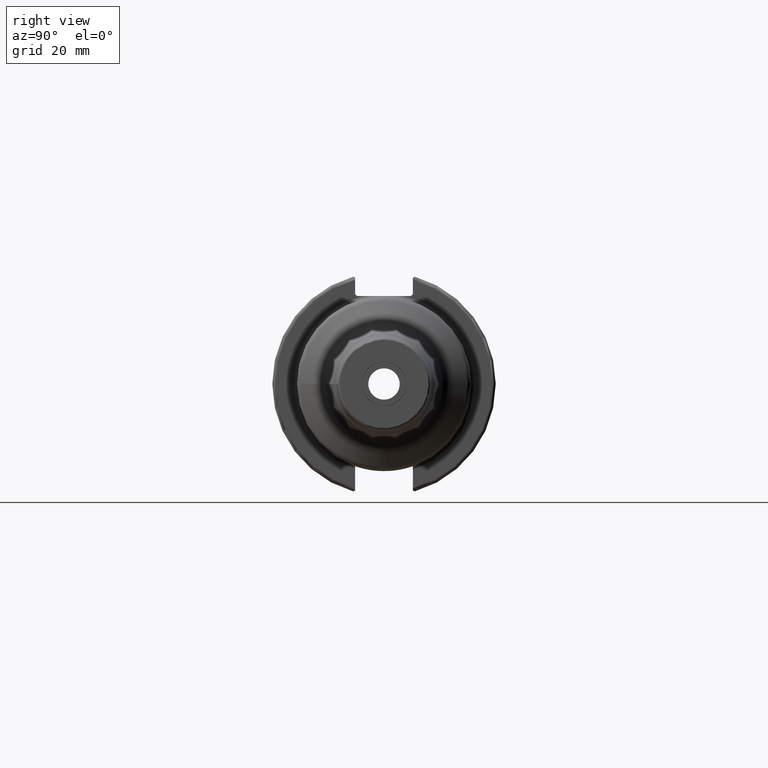
[diagram: clean part render]
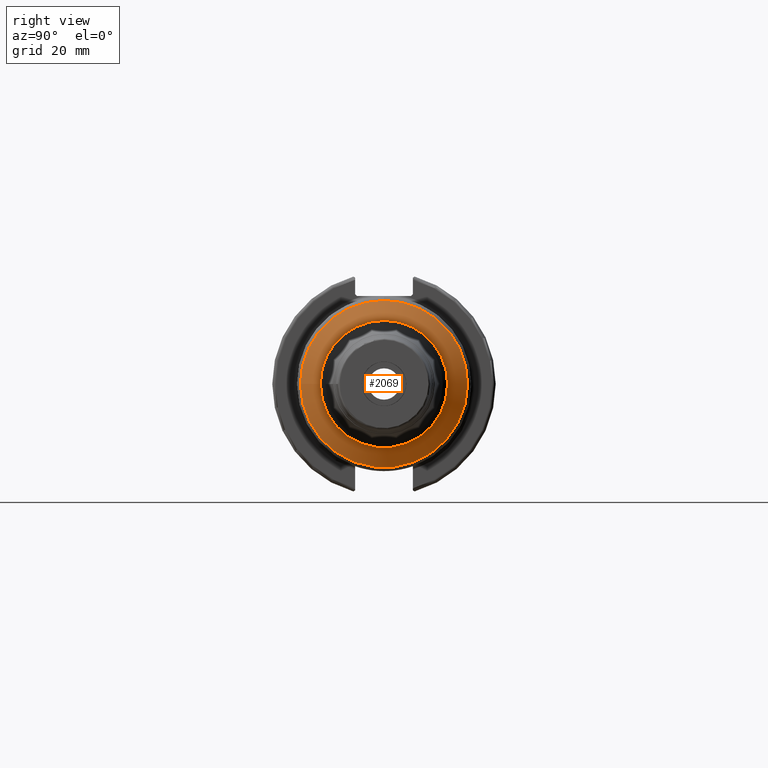
[diagram: same view with one face highlighted and labeled with its STEP entity id]
A machine part, right view. The second image highlights one B-rep face of the part: STEP entity #2069.
In plain terms, the highlighted conical surface has half-angle 60 deg.
Its self-contained STEP definition (entity closure, byte-faithful):
#188=FACE_OUTER_BOUND('',#296,.T.);
#296=EDGE_LOOP('',(#1402,#1403,#1404,#1405,#1406,#1407,#1408,#1409));
#415=LINE('',#3329,#514);
#514=VECTOR('',#2546,20.7092722749064);
#620=CIRCLE('',#2208,23.75);
#621=CIRCLE('',#2209,23.75);
#623=CIRCLE('',#2211,23.75);
#624=CIRCLE('',#2213,18.0791848368622);
#625=CIRCLE('',#2214,18.0791848368622);
#626=CIRCLE('',#2215,18.0791848368622);
#799=VERTEX_POINT('',#3316);
#800=VERTEX_POINT('',#3317);
#801=VERTEX_POINT('',#3319);
#802=VERTEX_POINT('',#3324);
#803=VERTEX_POINT('',#3325);
#804=VERTEX_POINT('',#3327);
#1045=EDGE_CURVE('',#799,#800,#620,.T.);
#1046=EDGE_CURVE('',#800,#801,#621,.T.);
#1048=EDGE_CURVE('',#801,#799,#623,.T.);
#1049=EDGE_CURVE('',#802,#803,#624,.T.);
#1050=EDGE_CURVE('',#804,#802,#625,.T.);
#1051=EDGE_CURVE('',#804,#800,#415,.T.);
#1052=EDGE_CURVE('',#803,#804,#626,.T.);
#1402=ORIENTED_EDGE('',*,*,#1049,.F.);
#1403=ORIENTED_EDGE('',*,*,#1050,.F.);
#1404=ORIENTED_EDGE('',*,*,#1051,.T.);
#1405=ORIENTED_EDGE('',*,*,#1045,.F.);
#1406=ORIENTED_EDGE('',*,*,#1048,.F.);
#1407=ORIENTED_EDGE('',*,*,#1046,.F.);
#1408=ORIENTED_EDGE('',*,*,#1051,.F.);
#1409=ORIENTED_EDGE('',*,*,#1052,.F.);
#2042=CONICAL_SURFACE('',#2212,20.7092722749064,1.0471975511966);
#2069=ADVANCED_FACE('',(#188),#2042,.T.);
#2208=AXIS2_PLACEMENT_3D('',#3318,#2532,#2533);
#2209=AXIS2_PLACEMENT_3D('',#3320,#2534,#2535);
#2211=AXIS2_PLACEMENT_3D('',#3322,#2538,#2539);
#2212=AXIS2_PLACEMENT_3D('',#3323,#2540,#2541);
#2213=AXIS2_PLACEMENT_3D('',#3326,#2542,#2543);
#2214=AXIS2_PLACEMENT_3D('',#3328,#2544,#2545);
#2215=AXIS2_PLACEMENT_3D('',#3330,#2547,#2548);
#2532=DIRECTION('center_axis',(-1.,0.,0.));
#2533=DIRECTION('ref_axis',(0.,-1.,3.06161699786838E-17));
#2534=DIRECTION('center_axis',(-1.,0.,0.));
#2535=DIRECTION('ref_axis',(0.,-1.,3.06161699786838E-17));
#2538=DIRECTION('center_axis',(-1.,0.,0.));
#2539=DIRECTION('ref_axis',(0.,-1.,3.06161699786838E-17));
#2540=DIRECTION('center_axis',(-1.,0.,0.));
#2541=DIRECTION('ref_axis',(0.,1.,0.));
#2542=DIRECTION('center_axis',(1.,0.,0.));
#2543=DIRECTION('ref_axis',(0.,-1.,3.06161699786838E-17));
#2544=DIRECTION('center_axis',(1.,0.,0.));
#2545=DIRECTION('ref_axis',(0.,-1.,3.06161699786838E-17));
#2546=DIRECTION('',(-0.500000000000001,-0.866025403784438,-1.06057523872491E-16));
#2547=DIRECTION('center_axis',(1.,0.,0.));
#2548=DIRECTION('ref_axis',(0.,-1.,3.06161699786838E-17));
#3316=CARTESIAN_POINT('',(45.9115197895801,23.75,-7.27134036993741E-15));
#3317=CARTESIAN_POINT('',(45.9115197895801,-23.75,-2.90853614797496E-15));
#3318=CARTESIAN_POINT('Origin',(45.9115197895801,0.,-3.6356701849687E-15));
#3319=CARTESIAN_POINT('',(45.9115197895801,-2.90853614797496E-15,23.75));
#3320=CARTESIAN_POINT('Origin',(45.9115197895801,0.,-3.6356701849687E-15));
#3322=CARTESIAN_POINT('Origin',(45.9115197895801,0.,-3.6356701849687E-15));
#3323=CARTESIAN_POINT('Origin',(47.6670847601952,0.,0.));
#3324=CARTESIAN_POINT('',(49.1855664505423,18.0791848368622,-1.10703079208283E-15));
#3325=CARTESIAN_POINT('',(49.1855664505423,-2.21406158416566E-15,18.0791848368622));
#3326=CARTESIAN_POINT('Origin',(49.1855664505423,0.,-2.76757698020708E-15));
#3327=CARTESIAN_POINT('',(49.1855664505423,-18.0791848368622,-2.21406158416566E-15));
#3328=CARTESIAN_POINT('Origin',(49.1855664505423,0.,-2.76757698020708E-15));
#3329=CARTESIAN_POINT('',(47.6670847601952,-20.7092722749064,-2.53615440041352E-15));
#3330=CARTESIAN_POINT('Origin',(49.1855664505423,0.,-2.76757698020708E-15));